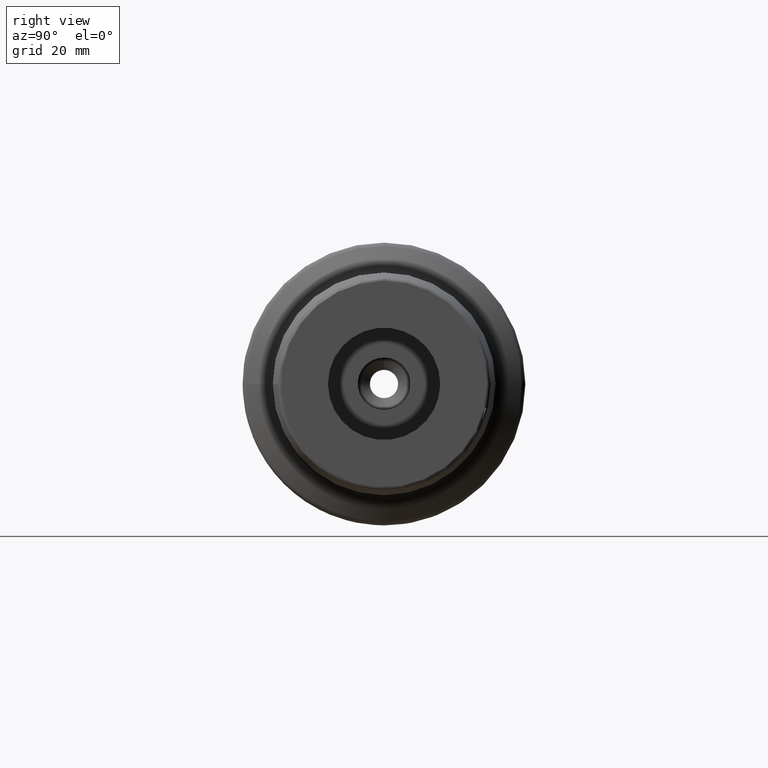
[diagram: clean part render]
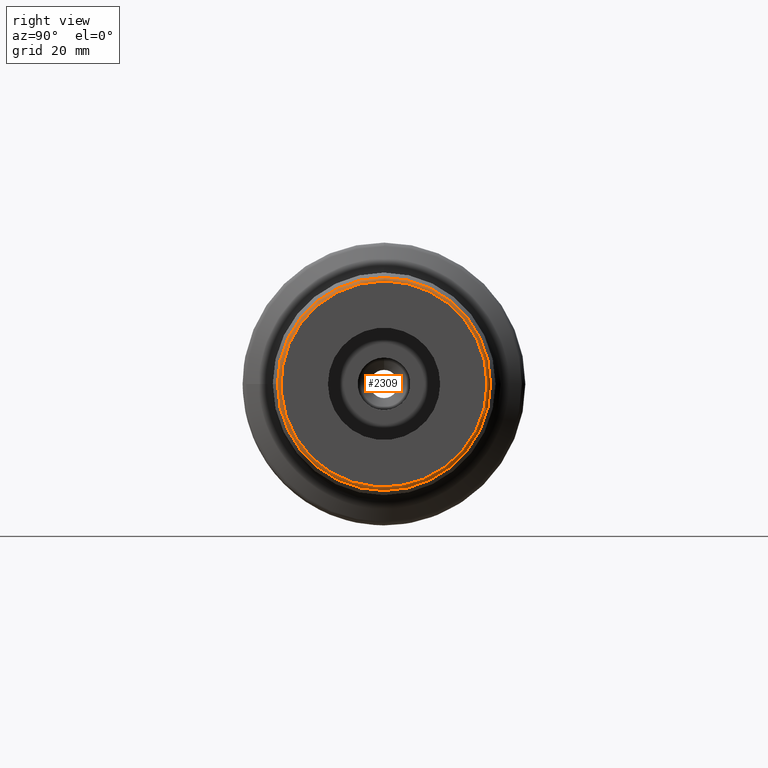
[diagram: same view with one face highlighted and labeled with its STEP entity id]
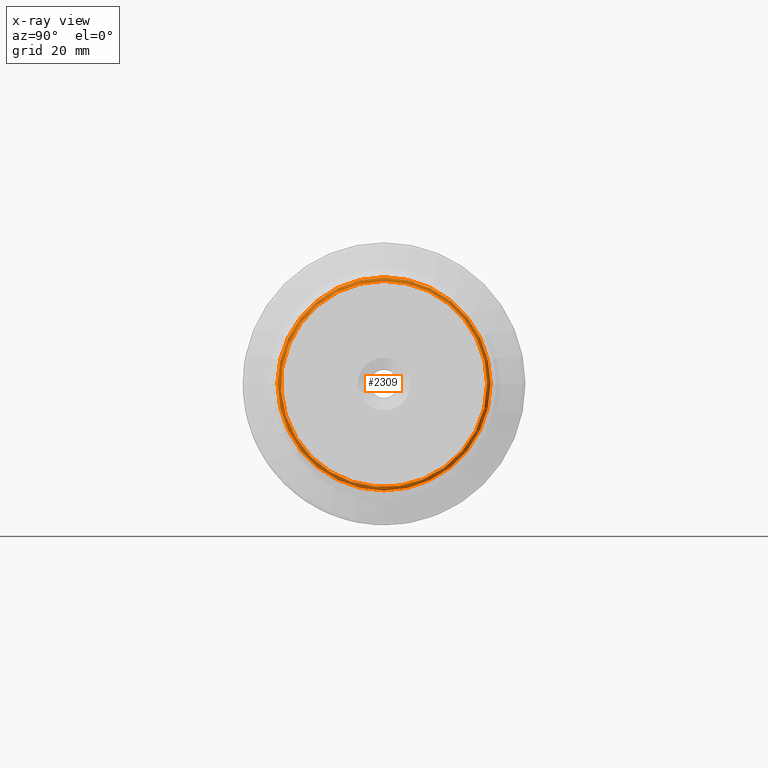
[diagram: x-ray of the same camera — body ghosted, the highlighted face saturated]
A machine part, right view. The second image highlights one B-rep face of the part: STEP entity #2309.
The next image is the same camera in x-ray: the body ghosted, the highlighted face saturated — about 0% of this face is hidden behind the body in this view.
In plain terms, the highlighted toroidal blend (fillet) surface has major radius 29.1609 mm and minor (blend) radius 1 mm.
Its self-contained STEP definition (entity closure, byte-faithful):
#102=TOROIDAL_SURFACE('',#2548,29.1609003688227,1.);
#224=FACE_OUTER_BOUND('',#345,.T.);
#345=EDGE_LOOP('',(#1735,#1736,#1737,#1738,#1739,#1740,#1741));
#763=CIRCLE('',#2545,30.1457081218349);
#764=CIRCLE('',#2546,30.1457081218349);
#765=CIRCLE('',#2547,30.1457081218349);
#766=CIRCLE('',#2549,29.1609003688227);
#767=CIRCLE('',#2550,1.);
#768=CIRCLE('',#2551,29.1609003688227);
#963=VERTEX_POINT('',#3893);
#964=VERTEX_POINT('',#3894);
#965=VERTEX_POINT('',#3896);
#966=VERTEX_POINT('',#3901);
#967=VERTEX_POINT('',#3902);
#1256=EDGE_CURVE('',#963,#964,#763,.T.);
#1257=EDGE_CURVE('',#965,#963,#764,.T.);
#1259=EDGE_CURVE('',#964,#965,#765,.T.);
#1260=EDGE_CURVE('',#966,#967,#766,.T.);
#1261=EDGE_CURVE('',#967,#964,#767,.T.);
#1262=EDGE_CURVE('',#967,#966,#768,.T.);
#1735=ORIENTED_EDGE('',*,*,#1260,.T.);
#1736=ORIENTED_EDGE('',*,*,#1261,.T.);
#1737=ORIENTED_EDGE('',*,*,#1259,.T.);
#1738=ORIENTED_EDGE('',*,*,#1257,.T.);
#1739=ORIENTED_EDGE('',*,*,#1256,.T.);
#1740=ORIENTED_EDGE('',*,*,#1261,.F.);
#1741=ORIENTED_EDGE('',*,*,#1262,.T.);
#2309=ADVANCED_FACE('',(#224),#102,.T.);
#2545=AXIS2_PLACEMENT_3D('',#3895,#3031,#3032);
#2546=AXIS2_PLACEMENT_3D('',#3897,#3033,#3034);
#2547=AXIS2_PLACEMENT_3D('',#3899,#3036,#3037);
#2548=AXIS2_PLACEMENT_3D('',#3900,#3038,#3039);
#2549=AXIS2_PLACEMENT_3D('',#3903,#3040,#3041);
#2550=AXIS2_PLACEMENT_3D('',#3904,#3042,#3043);
#2551=AXIS2_PLACEMENT_3D('',#3905,#3044,#3045);
#3031=DIRECTION('center_axis',(1.,0.,0.));
#3032=DIRECTION('ref_axis',(0.,-1.,3.06161699786839E-17));
#3033=DIRECTION('center_axis',(1.,0.,0.));
#3034=DIRECTION('ref_axis',(0.,-1.,3.06161699786839E-17));
#3036=DIRECTION('center_axis',(1.,0.,0.));
#3037=DIRECTION('ref_axis',(0.,-1.,3.06161699786839E-17));
#3038=DIRECTION('center_axis',(1.,0.,0.));
#3039=DIRECTION('ref_axis',(0.,0.,-1.));
#3040=DIRECTION('center_axis',(-1.,0.,0.));
#3041=DIRECTION('ref_axis',(0.,-1.,1.83697019872103E-16));
#3042=DIRECTION('center_axis',(0.,-1.,-1.22464679914735E-16));
#3043=DIRECTION('ref_axis',(0.,-1.22464679914735E-16,1.));
#3044=DIRECTION('center_axis',(-1.,0.,0.));
#3045=DIRECTION('ref_axis',(0.,-1.,1.83697019872103E-16));
#3893=CARTESIAN_POINT('',(104.173648177667,30.1457081218349,-1.84589224797178E-15));
#3894=CARTESIAN_POINT('',(104.173648177667,-3.69178449594355E-15,30.1457081218349));
#3895=CARTESIAN_POINT('Origin',(104.173648177667,0.,-4.61473061992944E-15));
#3896=CARTESIAN_POINT('',(104.173648177667,-30.1457081218349,-3.69178449594355E-15));
#3897=CARTESIAN_POINT('Origin',(104.173648177667,0.,-4.61473061992944E-15));
#3899=CARTESIAN_POINT('Origin',(104.173648177667,0.,-4.61473061992944E-15));
#3900=CARTESIAN_POINT('Origin',(104.,0.,0.));
#3901=CARTESIAN_POINT('',(105.,29.1609003688227,-8.9279508242334E-15));
#3902=CARTESIAN_POINT('',(105.,-3.57118032969336E-15,29.1609003688227));
#3903=CARTESIAN_POINT('Origin',(105.,0.,0.));
#3904=CARTESIAN_POINT('Origin',(104.,-3.57118032969336E-15,29.1609003688227));
#3905=CARTESIAN_POINT('Origin',(105.,0.,0.));